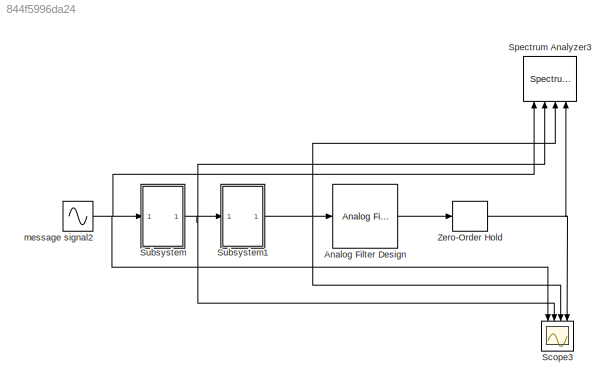
MODEL slx_844f5996da24
KIND model
CONFIG AbsTol = auto
CONFIG EnableMultiTasking = off
CONFIG FixedStep = auto
CONFIG MaxStep = auto
CONFIG MinStep = auto
CONFIG RelTol = 1e-3
CONFIG SampleTimeConstraint = Unconstrained
CONFIG SolverName = VariableStepAuto
CONFIG StartTime = 0.0
CONFIG StopTime = 50
BLOCK [Reference] Analog Filter Design  REF=dsparch4/Analog
Filter Design
  Ports = [1, 1]
  SourceBlock = dsparch4/Analog\nFilter Design
  SourceProductBaseCode = DS
  SourceType = Analog Filter Design
BLOCK [Scope] Scope3
  Floating = off
  NameLocation = left
  NumInputPorts = 4
  Ports = [4]
  ScopeSpecificationString = Simulink.scopes.TimeScopeBlockCfg('CurrentConfiguration', extmgr.ConfigurationSet(extmgr.Configuration('Core','General UI',true,'FigureColor',[1 1 1]),extmgr.Configuration('Core','Source UI',true),extmgr.Configuration('Sources','WiredSimulink',true,'DataLoggingVariableName','ScopeData2'),extmgr.Configuration('Visuals','Time Domain',true,'SerializedDisplays',{struct('MinYLimReal','-7.44494','MaxYLi...<+1827ch>
BLOCK [SpectrumAnalyzer] Spectrum Analyzer3
  NameLocation = right
  NumInputPorts = 4
  Ports = [4]
  ScopeSpecificationString = spbscopes.SpectrumAnalyzerBlockCfg('CurrentConfiguration', extmgr.ConfigurationSet(extmgr.Configuration('Core','General UI',true,'FigureColor',[1 1 1]),extmgr.Configuration('Core','Source UI',true),extmgr.Configuration('Sources','WiredSimulink',true),extmgr.Configuration('Sources','SPTool',false),extmgr.Configuration('Sources','File',false),extmgr.Configuration('Sources','Workspace',false),extmgr....<+2648ch>
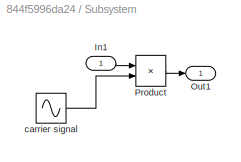
BLOCK [SubSystem] Subsystem
  Ports = [1, 1]
  RequestExecContextInheritance = off
BLOCK [Inport] Subsystem/In1
BLOCK [Outport] Subsystem/Out1
BLOCK [Product] Subsystem/Product
  Ports = [2, 1]
BLOCK [Sin] Subsystem/carrier signal
  Frequency = 2*pi*500
  Phase = pi/2
  Ports = [0, 1]
  SampleTime = 1/50000
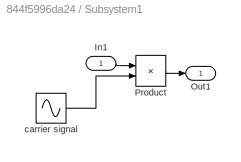
BLOCK [SubSystem] Subsystem1
  Ports = [1, 1]
  RequestExecContextInheritance = off
BLOCK [Inport] Subsystem1/In1
BLOCK [Outport] Subsystem1/Out1
BLOCK [Product] Subsystem1/Product
  Ports = [2, 1]
BLOCK [Sin] Subsystem1/carrier signal
  Frequency = 2*pi*500
  Phase = pi/2
  Ports = [0, 1]
  SampleTime = 1/50000
BLOCK [ZeroOrderHold] Zero-Order Hold
  SampleTime = -1
BLOCK [Sin] message signal2
  Bias = 5
  Frequency = 2*pi*50
  Phase = pi/2
  Ports = [0, 1]
  SampleTime = 1/50000
LINE Analog Filter Design:1 -> Zero-Order Hold:1
LINE Subsystem/In1:1 -> Subsystem/Product:1
LINE Subsystem/Product:1 -> Subsystem/Out1:1
LINE Subsystem/carrier signal:1 -> Subsystem/Product:2
LINE Subsystem1/In1:1 -> Subsystem1/Product:1
LINE Subsystem1/Product:1 -> Subsystem1/Out1:1
LINE Subsystem1/carrier signal:1 -> Subsystem1/Product:2
NET Subsystem1:1 -> Analog Filter Design:1, Scope3:3, Spectrum Analyzer3:3
NET Subsystem:1 -> Scope3:2, Spectrum Analyzer3:2, Subsystem1:1
NET Zero-Order Hold:1 -> Scope3:4, Spectrum Analyzer3:4
NET message signal2:1 -> Scope3:1, Spectrum Analyzer3:1, Subsystem:1
note: NET lines group one-source signal fan-out (src -> all destinations, sorted); 1:1 wires keep LINE
